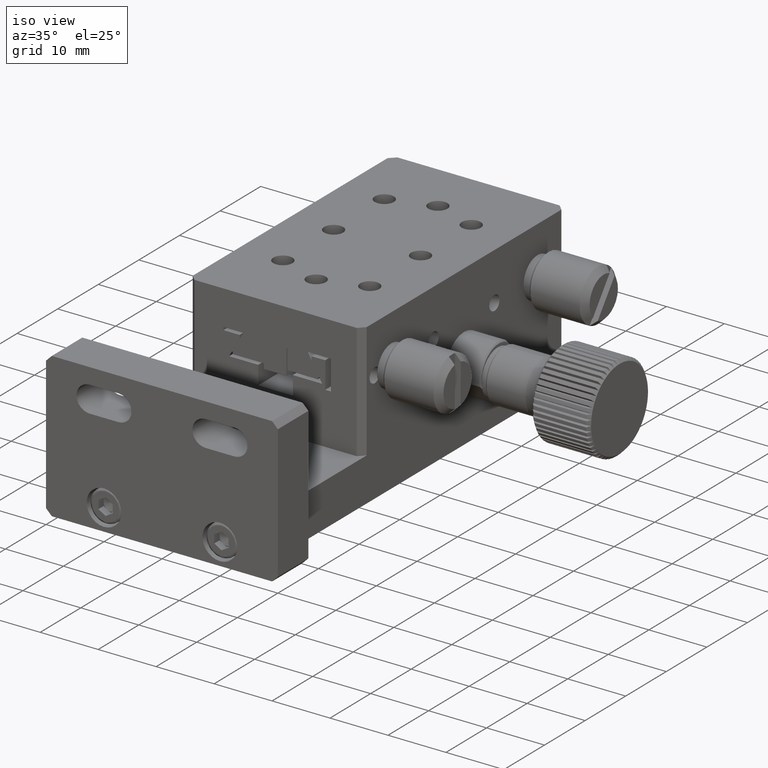
[diagram: clean part render]
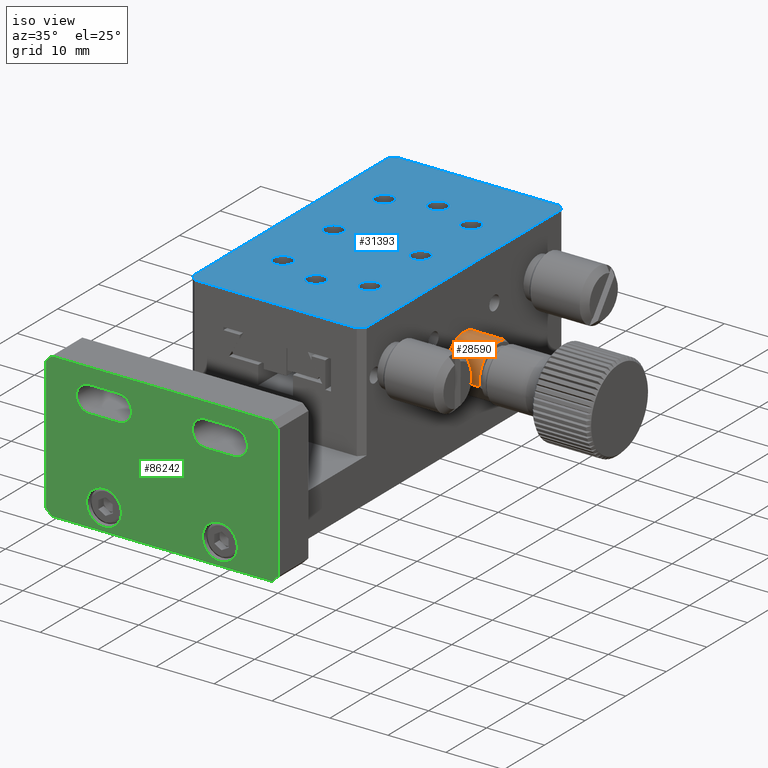
[diagram: same view with three faces highlighted in distinct colors, each labeled with its STEP entity id]
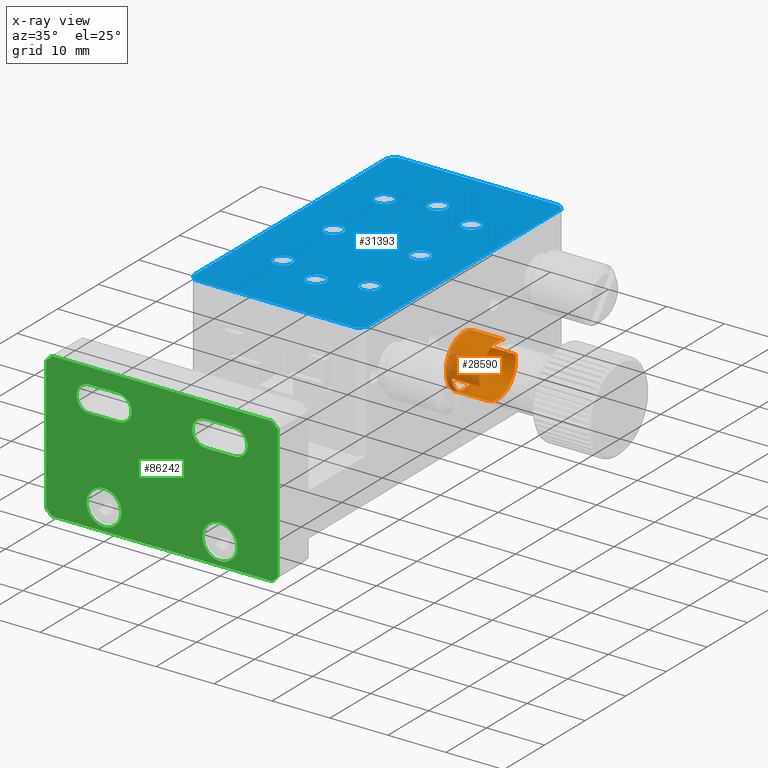
[diagram: x-ray of the same camera — body ghosted, the three highlighted faces saturated]
A machine part, iso view with three faces highlighted in distinct colors.
The next image is the same camera in x-ray (body ghosted, the three faces saturated) — at least one of them is partly hidden behind the body in this view.
Their STEP definitions:

[orange] entity #28590 — the highlighted cylindrical surface (bore or boss wall) has radius 4.5 mm, axis along (-1, 0, -0).
#4613 = DIRECTION ( 'NONE',  ( 1.000000000000000000, 2.810027915311846506E-14, 2.199258731218863696E-14 ) ) ;
#5357 = LINE ( 'NONE', #57992, #7927 ) ;
#7141 = EDGE_CURVE ( 'NONE', #19555, #33676, #62734, .T. ) ;
#7765 = CARTESIAN_POINT ( 'NONE',  ( 20.80000000000809024, 57.42055225823021658, -6.058146252483743943 ) ) ;
#7927 = VECTOR ( 'NONE', #59185, 1000.000000000000000 ) ;
#9046 = DIRECTION ( 'NONE',  ( 1.000000000000000000, -6.581911557350778885E-15, 6.630657487406821572E-14 ) ) ;
#9420 = VERTEX_POINT ( 'NONE', #67949 ) ;
#9538 = CIRCLE ( 'NONE', #83963, 4.499999999986812327 ) ;
#10146 = VERTEX_POINT ( 'NONE', #48368 ) ;
#10462 = VERTEX_POINT ( 'NONE', #117289 ) ;
#12035 = DIRECTION ( 'NONE',  ( -1.000000000000000000, 6.581911557350778885E-15, -6.630657487406821572E-14 ) ) ;
#12792 = EDGE_CURVE ( 'NONE', #10146, #10146, #83491, .T. ) ;
#14067 = CYLINDRICAL_SURFACE ( 'NONE', #46722, 4.500000000000000000 ) ;
#19012 = CARTESIAN_POINT ( 'NONE',  ( 20.80000000000811511, 53.00000000000095923, -6.899999999998638778 ) ) ;
#19555 = VERTEX_POINT ( 'NONE', #7765 ) ;
#21439 = ORIENTED_EDGE ( 'NONE', *, *, #37264, .F. ) ;
#21483 = CARTESIAN_POINT ( 'NONE',  ( 20.80000000001652438, 48.57944774176906577, -7.741853747510210049 ) ) ;
#21854 = DIRECTION ( 'NONE',  ( -6.630498619289128778E-14, 0.000000000000000000, 1.000000000000000000 ) ) ;
#21957 = CARTESIAN_POINT ( 'NONE',  ( 16.00000000000093792, 54.87937191828155647, -2.811239650849282512 ) ) ;
#23095 = EDGE_CURVE ( 'NONE', #35516, #33676, #93053, .T. ) ;
#23157 = LINE ( 'NONE', #21957, #72827 ) ;
#24634 = CARTESIAN_POINT ( 'NONE',  ( 20.80000000000811511, 53.00000000000095923, -6.899999999998638778 ) ) ;
#28590 = ADVANCED_FACE ( 'NONE', ( #113898, #57724 ), #14067, .T. ) ;
#30568 = EDGE_CURVE ( 'NONE', #113677, #10462, #102139, .T. ) ;
#31002 = DIRECTION ( 'NONE',  ( -6.630498619289128778E-14, 0.000000000000000000, 1.000000000000000000 ) ) ;
#32358 = CARTESIAN_POINT ( 'NONE',  ( 16.00000000000147438, 51.12062808172038331, -10.98876034914862743 ) ) ;
#33676 = VERTEX_POINT ( 'NONE', #35072 ) ;
#35072 = CARTESIAN_POINT ( 'NONE',  ( 16.00000000000125056, 57.42055225823902731, -6.058146252495292039 ) ) ;
#35516 = VERTEX_POINT ( 'NONE', #97136 ) ;
#37264 = EDGE_CURVE ( 'NONE', #9420, #88239, #57555, .T. ) ;
#37988 = ORIENTED_EDGE ( 'NONE', *, *, #7141, .F. ) ;
#38041 = EDGE_CURVE ( 'NONE', #88239, #45403, #5357, .T. ) ;
#38225 = CIRCLE ( 'NONE', #84068, 4.500000000000000000 ) ;
#39361 = CARTESIAN_POINT ( 'NONE',  ( 16.00000000000132871, 53.00000000000098765, -6.899999999998957634 ) ) ;
#39886 = CARTESIAN_POINT ( 'NONE',  ( 16.00000000000141753, 48.57944774176277036, -7.741853747502436711 ) ) ;
#44406 = ORIENTED_EDGE ( 'NONE', *, *, #55883, .T. ) ;
#45133 = CARTESIAN_POINT ( 'NONE',  ( 16.00000000000133582, 53.00000000000098765, -6.899999999998957634 ) ) ;
#45151 = EDGE_CURVE ( 'NONE', #10462, #19555, #9538, .T. ) ;
#45403 = VERTEX_POINT ( 'NONE', #39886 ) ;
#46496 = DIRECTION ( 'NONE',  ( 5.628213944296801737E-14, 0.6163267620811460068, -0.7874905220652312909 ) ) ;
#46722 = AXIS2_PLACEMENT_3D ( 'NONE', #64506, #95993, #21854 ) ;
#48368 = CARTESIAN_POINT ( 'NONE',  ( 15.00000000000103562, 53.00000000000099476, -2.399999999999024247 ) ) ;
#50119 = DIRECTION ( 'NONE',  ( 1.000000000000000000, -6.581911557350778885E-15, 6.630657487406821572E-14 ) ) ;
#51057 = AXIS2_PLACEMENT_3D ( 'NONE', #94375, #50119, #31002 ) ;
#52486 = DIRECTION ( 'NONE',  ( 1.000000000000000000, 2.810027915311846506E-14, 2.199258731218863696E-14 ) ) ;
#55883 = EDGE_CURVE ( 'NONE', #113677, #45403, #38225, .T. ) ;
#56183 = VECTOR ( 'NONE', #52486, 1000.000000000000000 ) ;
#57555 = CIRCLE ( 'NONE', #70925, 4.499999999986814103 ) ;
#57724 = FACE_OUTER_BOUND ( 'NONE', #95899, .T. ) ;
#57992 = CARTESIAN_POINT ( 'NONE',  ( 16.00000000000122213, 48.57944774176265668, -7.741853747502299044 ) ) ;
#59185 = DIRECTION ( 'NONE',  ( -1.000000000000000000, -2.810027915311846506E-14, -2.199258731218863696E-14 ) ) ;
#60010 = EDGE_CURVE ( 'NONE', #35516, #9420, #23157, .T. ) ;
#60964 = CARTESIAN_POINT ( 'NONE',  ( 16.00000000000093792, 57.42055225823894204, -6.058146252495181905 ) ) ;
#62734 = LINE ( 'NONE', #60964, #64227 ) ;
#63783 = ORIENTED_EDGE ( 'NONE', *, *, #30568, .F. ) ;
#64227 = VECTOR ( 'NONE', #97458, 1000.000000000000000 ) ;
#64506 = CARTESIAN_POINT ( 'NONE',  ( 21.00000000000133227, 53.00000000000095923, -6.899999999998626343 ) ) ;
#66112 = EDGE_LOOP ( 'NONE', ( #113785, #21439, #102343, #103935, #37988, #115014, #63783, #44406 ) ) ;
#67949 = CARTESIAN_POINT ( 'NONE',  ( 20.80000000001826166, 54.87937191829048800, -2.811239650860419381 ) ) ;
#70925 = AXIS2_PLACEMENT_3D ( 'NONE', #24634, #9046, #72458 ) ;
#72458 = DIRECTION ( 'NONE',  ( 5.628213944296799213E-14, 0.6163267620811457848, -0.7874905220652312909 ) ) ;
#72827 = VECTOR ( 'NONE', #4613, 1000.000000000000000 ) ;
#75838 = DIRECTION ( 'NONE',  ( -1.000000000000000000, 6.581911557350778885E-15, -6.630657487406821572E-14 ) ) ;
#81609 = DIRECTION ( 'NONE',  ( -6.630498619289128778E-14, 0.000000000000000000, 1.000000000000000000 ) ) ;
#83491 = CIRCLE ( 'NONE', #51057, 4.500000000000000000 ) ;
#83963 = AXIS2_PLACEMENT_3D ( 'NONE', #19012, #108709, #46496 ) ;
#84068 = AXIS2_PLACEMENT_3D ( 'NONE', #39361, #75838, #111672 ) ;
#88239 = VERTEX_POINT ( 'NONE', #21483 ) ;
#93053 = CIRCLE ( 'NONE', #108334, 4.500000000000000000 ) ;
#94375 = CARTESIAN_POINT ( 'NONE',  ( 15.00000000000133404, 53.00000000000099476, -6.899999999999024247 ) ) ;
#95899 = EDGE_LOOP ( 'NONE', ( #104237 ) ) ;
#95993 = DIRECTION ( 'NONE',  ( -1.000000000000000000, 6.581911557350778885E-15, -6.630657487406821572E-14 ) ) ;
#96736 = CARTESIAN_POINT ( 'NONE',  ( 16.00000000000122213, 51.12062808172038331, -10.98876034914862743 ) ) ;
#97136 = CARTESIAN_POINT ( 'NONE',  ( 16.00000000000117240, 54.87937191828155647, -2.811239650849282512 ) ) ;
#97458 = DIRECTION ( 'NONE',  ( -1.000000000000000000, -2.810027915311846506E-14, -2.199258731218863696E-14 ) ) ;
#102139 = LINE ( 'NONE', #96736, #56183 ) ;
#102343 = ORIENTED_EDGE ( 'NONE', *, *, #60010, .F. ) ;
#103935 = ORIENTED_EDGE ( 'NONE', *, *, #23095, .T. ) ;
#104237 = ORIENTED_EDGE ( 'NONE', *, *, #12792, .T. ) ;
#108334 = AXIS2_PLACEMENT_3D ( 'NONE', #45133, #12035, #81609 ) ;
#108709 = DIRECTION ( 'NONE',  ( 1.000000000000000000, -6.581911557350778885E-15, 6.630657487406821572E-14 ) ) ;
#111672 = DIRECTION ( 'NONE',  ( -6.630498619289128778E-14, 0.000000000000000000, 1.000000000000000000 ) ) ;
#113677 = VERTEX_POINT ( 'NONE', #32358 ) ;
#113785 = ORIENTED_EDGE ( 'NONE', *, *, #38041, .F. ) ;
#113898 = FACE_OUTER_BOUND ( 'NONE', #66112, .T. ) ;
#115014 = ORIENTED_EDGE ( 'NONE', *, *, #45151, .F. ) ;
#117289 = CARTESIAN_POINT ( 'NONE',  ( 20.80000000000169891, 51.12062808172051120, -10.98876034914852085 ) ) ;

[blue] entity #31393 — the highlighted planar face has unit normal (-0, -0, 1).
#544 = ORIENTED_EDGE ( 'NONE', *, *, #22262, .T. ) ;
#595 = EDGE_CURVE ( 'NONE', #25746, #25746, #10522, .T. ) ;
#1920 = LINE ( 'NONE', #91650, #47358 ) ;
#4480 = VERTEX_POINT ( 'NONE', #115847 ) ;
#5221 = CIRCLE ( 'NONE', #12904, 1.649999999999991696 ) ;
#5225 = CARTESIAN_POINT ( 'NONE',  ( -14.99999999999934630, 77.00000000000125056, 7.499999999999312550 ) ) ;
#5404 = DIRECTION ( 'NONE',  ( 1.000000000000000000, 0.000000000000000000, 6.938893903907292749E-14 ) ) ;
#5482 = CARTESIAN_POINT ( 'NONE',  ( -13.99999999999975309, 28.00000000000123279, 7.499999999999771738 ) ) ;
#5984 = CARTESIAN_POINT ( 'NONE',  ( -14.99999999999953459, 29.00000000000103029, 7.499999999999254818 ) ) ;
#7191 = DIRECTION ( 'NONE',  ( 1.000000000000000000, 0.000000000000000000, 6.938893903907234689E-14 ) ) ;
#7308 = EDGE_LOOP ( 'NONE', ( #27938 ) ) ;
#7710 = DIRECTION ( 'NONE',  ( -1.181590230087572649E-28, 1.000000000000000000, 1.706450796586064217E-15 ) ) ;
#8218 = FACE_BOUND ( 'NONE', #114209, .T. ) ;
#8797 = DIRECTION ( 'NONE',  ( 1.000000000000000000, 0.000000000000000000, 6.924256078472752334E-14 ) ) ;
#9237 = LINE ( 'NONE', #71465, #51332 ) ;
#10522 = CIRCLE ( 'NONE', #94523, 1.649999999999984812 ) ;
#10981 = EDGE_LOOP ( 'NONE', ( #64732 ) ) ;
#12904 = AXIS2_PLACEMENT_3D ( 'NONE', #94834, #49989, #67340 ) ;
#13535 = EDGE_LOOP ( 'NONE', ( #103001 ) ) ;
#14086 = CARTESIAN_POINT ( 'NONE',  ( 7.500000000000561329, 65.50000000000105160, 7.500000000000853539 ) ) ;
#14844 = CARTESIAN_POINT ( 'NONE',  ( 9.150000000000456879, 53.00000000000105871, 7.500000000000939693 ) ) ;
#14878 = LINE ( 'NONE', #69318, #97375 ) ;
#16190 = LINE ( 'NONE', #52667, #41602 ) ;
#17616 = DIRECTION ( 'NONE',  ( 0.7071067811865530128, 0.7071067811865421326, -0.000000000000000000 ) ) ;
#17765 = PLANE ( 'NONE',  #94736 ) ;
#18253 = VERTEX_POINT ( 'NONE', #83162 ) ;
#19419 = VERTEX_POINT ( 'NONE', #5984 ) ;
#20618 = CARTESIAN_POINT ( 'NONE',  ( 14.00000000000054001, 28.00000000000116884, 7.500000000001255884 ) ) ;
#21146 = EDGE_CURVE ( 'NONE', #47132, #46548, #9237, .T. ) ;
#22262 = EDGE_CURVE ( 'NONE', #83669, #83669, #5221, .T. ) ;
#22771 = CARTESIAN_POINT ( 'NONE',  ( 3.608224830031758756E-13, 38.00000000000111555, 7.500000000000284217 ) ) ;
#23201 = ORIENTED_EDGE ( 'NONE', *, *, #595, .T. ) ;
#23954 = CARTESIAN_POINT ( 'NONE',  ( 14.00000000000085798, 78.00000000000089528, 7.500000000001310951 ) ) ;
#25575 = FACE_BOUND ( 'NONE', #110947, .T. ) ;
#25746 = VERTEX_POINT ( 'NONE', #80754 ) ;
#26709 = AXIS2_PLACEMENT_3D ( 'NONE', #83969, #94110, #92934 ) ;
#26752 = FACE_BOUND ( 'NONE', #7308, .T. ) ;
#27757 = EDGE_CURVE ( 'NONE', #87216, #87216, #40847, .T. ) ;
#27897 = FACE_BOUND ( 'NONE', #39582, .T. ) ;
#27938 = ORIENTED_EDGE ( 'NONE', *, *, #32928, .T. ) ;
#28834 = DIRECTION ( 'NONE',  ( 1.000000000000000000, 0.000000000000000000, 6.938893903907292749E-14 ) ) ;
#30021 = EDGE_CURVE ( 'NONE', #113501, #113501, #96321, .T. ) ;
#30278 = VERTEX_POINT ( 'NONE', #48807 ) ;
#30426 = VECTOR ( 'NONE', #69406, 1000.000000000000000 ) ;
#31393 = ADVANCED_FACE ( 'NONE', ( #72796, #100832, #25575, #45255, #36306, #80585, #8218, #27897, #26752 ), #17765, .T. ) ;
#31948 = EDGE_CURVE ( 'NONE', #68095, #68095, #64189, .T. ) ;
#32928 = EDGE_CURVE ( 'NONE', #77657, #77657, #89273, .T. ) ;
#34981 = EDGE_LOOP ( 'NONE', ( #53014 ) ) ;
#35895 = AXIS2_PLACEMENT_3D ( 'NONE', #83837, #103518, #28834 ) ;
#36306 = FACE_BOUND ( 'NONE', #10981, .T. ) ;
#37689 = ORIENTED_EDGE ( 'NONE', *, *, #111730, .T. ) ;
#38226 = CARTESIAN_POINT ( 'NONE',  ( 9.150000000000359179, 40.50000000000107292, 7.500000000000926370 ) ) ;
#39132 = EDGE_CURVE ( 'NONE', #79462, #4480, #59642, .T. ) ;
#39582 = EDGE_LOOP ( 'NONE', ( #544 ) ) ;
#40320 = VECTOR ( 'NONE', #48301, 1000.000000000000114 ) ;
#40586 = CARTESIAN_POINT ( 'NONE',  ( -5.849999999999439204, 65.50000000000117950, 7.499999999999940492 ) ) ;
#40698 = DIRECTION ( 'NONE',  ( 6.924256078472752334E-14, 1.706450796582752776E-15, -1.000000000000000000 ) ) ;
#40847 = CIRCLE ( 'NONE', #73371, 1.649999999999998579 ) ;
#41602 = VECTOR ( 'NONE', #109829, 1000.000000000000000 ) ;
#42737 = CARTESIAN_POINT ( 'NONE',  ( -14.99999999999924682, 77.00000000000135003, 7.499999999999289457 ) ) ;
#43140 = EDGE_CURVE ( 'NONE', #79462, #19419, #59824, .T. ) ;
#44234 = EDGE_CURVE ( 'NONE', #46548, #18253, #14878, .T. ) ;
#44691 = CARTESIAN_POINT ( 'NONE',  ( 15.00000000000066791, 78.00000000000100897, 7.500000000001380229 ) ) ;
#45255 = FACE_BOUND ( 'NONE', #103305, .T. ) ;
#46548 = VERTEX_POINT ( 'NONE', #92399 ) ;
#46773 = DIRECTION ( 'NONE',  ( 1.000000000000000000, 0.000000000000000000, 6.924256078472752334E-14 ) ) ;
#47132 = VERTEX_POINT ( 'NONE', #20618 ) ;
#47358 = VECTOR ( 'NONE', #46773, 1000.000000000000000 ) ;
#47774 = CIRCLE ( 'NONE', #26709, 1.649999999999991696 ) ;
#48301 = DIRECTION ( 'NONE',  ( 0.7071067811865501263, 0.7071067811865450192, -0.000000000000000000 ) ) ;
#48807 = CARTESIAN_POINT ( 'NONE',  ( 1.650000000000567679, 68.00000000000110845, 7.500000000000454747 ) ) ;
#49989 = DIRECTION ( 'NONE',  ( 6.924256078472752334E-14, 1.706450796582752776E-15, -1.000000000000000000 ) ) ;
#50295 = CARTESIAN_POINT ( 'NONE',  ( 15.00000000000085443, 77.00000000000081002, 7.500000000001310951 ) ) ;
#51332 = VECTOR ( 'NONE', #17616, 1000.000000000000000 ) ;
#51533 = CARTESIAN_POINT ( 'NONE',  ( -7.499999999999633182, 40.50000000000117950, 7.499999999999785061 ) ) ;
#52667 = CARTESIAN_POINT ( 'NONE',  ( -13.99999999999592859, 27.99999999999741362, 7.499999999999285016 ) ) ;
#53014 = ORIENTED_EDGE ( 'NONE', *, *, #86357, .T. ) ;
#53472 = DIRECTION ( 'NONE',  ( 6.924256078472752334E-14, 1.706450796582752776E-15, -1.000000000000000000 ) ) ;
#54666 = ORIENTED_EDGE ( 'NONE', *, *, #31948, .T. ) ;
#58966 = VERTEX_POINT ( 'NONE', #95450 ) ;
#59368 = VERTEX_POINT ( 'NONE', #5482 ) ;
#59642 = LINE ( 'NONE', #5225, #40320 ) ;
#59824 = LINE ( 'NONE', #69990, #30426 ) ;
#60482 = DIRECTION ( 'NONE',  ( 1.000000000000000000, 0.000000000000000000, 6.938893903907263719E-14 ) ) ;
#61249 = CARTESIAN_POINT ( 'NONE',  ( 7.500000000000464517, 53.00000000000105871, 7.500000000000825118 ) ) ;
#61697 = ORIENTED_EDGE ( 'NONE', *, *, #81165, .T. ) ;
#62982 = DIRECTION ( 'NONE',  ( -1.000000000000000000, -0.000000000000000000, -6.924256078472752334E-14 ) ) ;
#62997 = ORIENTED_EDGE ( 'NONE', *, *, #44234, .T. ) ;
#64189 = CIRCLE ( 'NONE', #100441, 1.649999999999984812 ) ;
#64732 = ORIENTED_EDGE ( 'NONE', *, *, #27757, .T. ) ;
#65741 = AXIS2_PLACEMENT_3D ( 'NONE', #61249, #53472, #89955 ) ;
#67340 = DIRECTION ( 'NONE',  ( 1.000000000000000000, 0.000000000000000000, 6.938893903907263719E-14 ) ) ;
#67663 = DIRECTION ( 'NONE',  ( 0.7071067811865469066, -0.7071067811865482389, -0.000000000000000000 ) ) ;
#68095 = VERTEX_POINT ( 'NONE', #78837 ) ;
#68240 = AXIS2_PLACEMENT_3D ( 'NONE', #51533, #114876, #60482 ) ;
#69318 = CARTESIAN_POINT ( 'NONE',  ( 15.00000000000029132, 78.00000000000100897, 7.500000000001380229 ) ) ;
#69406 = DIRECTION ( 'NONE',  ( 1.181590230087572649E-28, -1.000000000000000000, -1.706450796586064217E-15 ) ) ;
#69990 = CARTESIAN_POINT ( 'NONE',  ( -14.99999999999934630, 78.00000000000100897, 7.499999999999303668 ) ) ;
#70640 = VECTOR ( 'NONE', #67663, 999.9999999999998863 ) ;
#71465 = CARTESIAN_POINT ( 'NONE',  ( 14.00000000000457767, 28.00000000000531131, 7.500000000001283418 ) ) ;
#72796 = FACE_OUTER_BOUND ( 'NONE', #76606, .T. ) ;
#73371 = AXIS2_PLACEMENT_3D ( 'NONE', #80144, #79545, #7191 ) ;
#76606 = EDGE_LOOP ( 'NONE', ( #91808, #98395, #61697, #82788, #62997, #105826, #107832, #116309 ) ) ;
#77657 = VERTEX_POINT ( 'NONE', #115260 ) ;
#78311 = VERTEX_POINT ( 'NONE', #23954 ) ;
#78837 = CARTESIAN_POINT ( 'NONE',  ( 9.150000000000545697, 65.50000000000105160, 7.500000000000968114 ) ) ;
#79462 = VERTEX_POINT ( 'NONE', #42737 ) ;
#79545 = DIRECTION ( 'NONE',  ( 6.924256078472752334E-14, 1.706450796582752776E-15, -1.000000000000000000 ) ) ;
#80144 = CARTESIAN_POINT ( 'NONE',  ( -7.499999999999437783, 65.50000000000117950, 7.499999999999825917 ) ) ;
#80585 = FACE_BOUND ( 'NONE', #13535, .T. ) ;
#80754 = CARTESIAN_POINT ( 'NONE',  ( 1.650000000000345635, 38.00000000000111555, 7.500000000000398792 ) ) ;
#81165 = EDGE_CURVE ( 'NONE', #59368, #47132, #1920, .T. ) ;
#81507 = LINE ( 'NONE', #100022, #84107 ) ;
#82788 = ORIENTED_EDGE ( 'NONE', *, *, #21146, .T. ) ;
#83162 = CARTESIAN_POINT ( 'NONE',  ( 15.00000000000056133, 77.00000000000109424, 7.500000000001345590 ) ) ;
#83669 = VERTEX_POINT ( 'NONE', #38226 ) ;
#83837 = CARTESIAN_POINT ( 'NONE',  ( 5.828670879282070827E-13, 68.00000000000110845, 7.500000000000340172 ) ) ;
#83969 = CARTESIAN_POINT ( 'NONE',  ( -7.499999999999534595, 53.00000000000118661, 7.499999999999798383 ) ) ;
#84107 = VECTOR ( 'NONE', #62982, 1000.000000000000000 ) ;
#85254 = EDGE_CURVE ( 'NONE', #19419, #59368, #16190, .T. ) ;
#86357 = EDGE_CURVE ( 'NONE', #30278, #30278, #89340, .T. ) ;
#87043 = DIRECTION ( 'NONE',  ( 6.924256078472752334E-14, 1.706450796582752776E-15, -1.000000000000000000 ) ) ;
#87216 = VERTEX_POINT ( 'NONE', #40586 ) ;
#89273 = CIRCLE ( 'NONE', #68240, 1.649999999999991696 ) ;
#89340 = CIRCLE ( 'NONE', #35895, 1.649999999999984812 ) ;
#89955 = DIRECTION ( 'NONE',  ( 1.000000000000000000, 0.000000000000000000, 6.938893903907263719E-14 ) ) ;
#91650 = CARTESIAN_POINT ( 'NONE',  ( 15.00000000000066791, 28.00000000000122569, 7.500000000001295852 ) ) ;
#91808 = ORIENTED_EDGE ( 'NONE', *, *, #43140, .T. ) ;
#92399 = CARTESIAN_POINT ( 'NONE',  ( 15.00000000000029310, 29.00000000000101252, 7.500000000001325162 ) ) ;
#92934 = DIRECTION ( 'NONE',  ( 1.000000000000000000, 0.000000000000000000, 6.938893903907263719E-14 ) ) ;
#94110 = DIRECTION ( 'NONE',  ( 6.924256078472752334E-14, 1.706450796582752776E-15, -1.000000000000000000 ) ) ;
#94523 = AXIS2_PLACEMENT_3D ( 'NONE', #22771, #40698, #5404 ) ;
#94736 = AXIS2_PLACEMENT_3D ( 'NONE', #44691, #99673, #8797 ) ;
#94834 = CARTESIAN_POINT ( 'NONE',  ( 7.500000000000367706, 40.50000000000107292, 7.500000000000811795 ) ) ;
#95450 = CARTESIAN_POINT ( 'NONE',  ( -5.849999999999543121, 53.00000000000118661, 7.499999999999912959 ) ) ;
#95696 = EDGE_CURVE ( 'NONE', #78311, #18253, #95756, .T. ) ;
#95756 = LINE ( 'NONE', #50295, #70640 ) ;
#96321 = CIRCLE ( 'NONE', #65741, 1.649999999999991696 ) ;
#97375 = VECTOR ( 'NONE', #7710, 1000.000000000000000 ) ;
#98395 = ORIENTED_EDGE ( 'NONE', *, *, #85254, .T. ) ;
#99673 = DIRECTION ( 'NONE',  ( -6.924256078472752334E-14, -1.706450796586064217E-15, 1.000000000000000000 ) ) ;
#100022 = CARTESIAN_POINT ( 'NONE',  ( 15.00000000000066791, 78.00000000000100897, 7.500000000001380229 ) ) ;
#100441 = AXIS2_PLACEMENT_3D ( 'NONE', #14086, #87043, #105543 ) ;
#100832 = FACE_BOUND ( 'NONE', #34981, .T. ) ;
#101432 = EDGE_CURVE ( 'NONE', #78311, #4480, #81507, .T. ) ;
#103001 = ORIENTED_EDGE ( 'NONE', *, *, #30021, .T. ) ;
#103305 = EDGE_LOOP ( 'NONE', ( #54666 ) ) ;
#103518 = DIRECTION ( 'NONE',  ( 6.924256078472752334E-14, 1.706450796582752776E-15, -1.000000000000000000 ) ) ;
#105543 = DIRECTION ( 'NONE',  ( 1.000000000000000000, 0.000000000000000000, 6.938893903907292749E-14 ) ) ;
#105826 = ORIENTED_EDGE ( 'NONE', *, *, #95696, .F. ) ;
#107832 = ORIENTED_EDGE ( 'NONE', *, *, #101432, .T. ) ;
#109829 = DIRECTION ( 'NONE',  ( 0.7071067811865416886, -0.7071067811865534569, -0.000000000000000000 ) ) ;
#110947 = EDGE_LOOP ( 'NONE', ( #23201 ) ) ;
#111730 = EDGE_CURVE ( 'NONE', #58966, #58966, #47774, .T. ) ;
#113501 = VERTEX_POINT ( 'NONE', #14844 ) ;
#114209 = EDGE_LOOP ( 'NONE', ( #37689 ) ) ;
#114876 = DIRECTION ( 'NONE',  ( 6.924256078472752334E-14, 1.706450796582752776E-15, -1.000000000000000000 ) ) ;
#115260 = CARTESIAN_POINT ( 'NONE',  ( -5.849999999999640821, 40.50000000000117950, 7.499999999999899636 ) ) ;
#115847 = CARTESIAN_POINT ( 'NONE',  ( -13.99999999999943157, 78.00000000000117950, 7.499999999999826805 ) ) ;
#116309 = ORIENTED_EDGE ( 'NONE', *, *, #39132, .F. ) ;

[green] entity #86242 — the highlighted planar face has unit normal (-0, 1, 0).
#151 = DIRECTION ( 'NONE',  ( 0.000000000000000000, -2.528974147905113794E-16, 1.000000000000000000 ) ) ;
#191 = VERTEX_POINT ( 'NONE', #20390 ) ;
#735 = FACE_BOUND ( 'NONE', #66517, .T. ) ;
#1128 = CARTESIAN_POINT ( 'NONE',  ( -7.500000000000001776, 1.788767395229413127E-15, -2.250000000000001332 ) ) ;
#1311 = FACE_OUTER_BOUND ( 'NONE', #81040, .T. ) ;
#1522 = CIRCLE ( 'NONE', #49351, 2.999999999999999112 ) ;
#1525 = CARTESIAN_POINT ( 'NONE',  ( -19.00000000000000000, 7.222237291452134449E-32, 4.999999999999992006 ) ) ;
#1733 = EDGE_CURVE ( 'NONE', #20713, #61427, #58318, .T. ) ;
#4334 = CARTESIAN_POINT ( 'NONE',  ( -12.50000000000000000, -1.284086891306705978E-15, -2.250000000000000444 ) ) ;
#4657 = ORIENTED_EDGE ( 'NONE', *, *, #22273, .F. ) ;
#5173 = DIRECTION ( 'NONE',  ( 0.000000000000000000, -2.439496423901527117E-16, 1.000000000000000000 ) ) ;
#10566 = VERTEX_POINT ( 'NONE', #94258 ) ;
#11252 = VERTEX_POINT ( 'NONE', #39512 ) ;
#11600 = ORIENTED_EDGE ( 'NONE', *, *, #39081, .F. ) ;
#11794 = LINE ( 'NONE', #20758, #30171 ) ;
#13392 = DIRECTION ( 'NONE',  ( 0.000000000000000000, 0.000000000000000000, -1.000000000000000000 ) ) ;
#16157 = ORIENTED_EDGE ( 'NONE', *, *, #18861, .F. ) ;
#17870 = DIRECTION ( 'NONE',  ( -1.000000000000000000, -0.000000000000000000, -0.000000000000000000 ) ) ;
#18861 = EDGE_CURVE ( 'NONE', #68214, #11252, #86715, .T. ) ;
#19415 = LINE ( 'NONE', #101311, #64585 ) ;
#20239 = VECTOR ( 'NONE', #100946, 1000.000000000000000 ) ;
#20390 = CARTESIAN_POINT ( 'NONE',  ( -7.500000000000000888, 6.708615165729186754E-16, 2.249999999999999556 ) ) ;
#20406 = AXIS2_PLACEMENT_3D ( 'NONE', #97735, #69644, #43921 ) ;
#20709 = AXIS2_PLACEMENT_3D ( 'NONE', #28231, #45583, #151 ) ;
#20713 = VERTEX_POINT ( 'NONE', #89996 ) ;
#20758 = CARTESIAN_POINT ( 'NONE',  ( -19.00000000000000355, -2.775557561562891351E-14, -20.00000000000000355 ) ) ;
#21625 = DIRECTION ( 'NONE',  ( 0.000000000000000000, -2.439496423901527117E-16, 1.000000000000000000 ) ) ;
#21762 = DIRECTION ( 'NONE',  ( -0.000000000000000000, -1.000000000000000000, -0.000000000000000000 ) ) ;
#22273 = EDGE_CURVE ( 'NONE', #11252, #99070, #66744, .T. ) ;
#23366 = LINE ( 'NONE', #32921, #26618 ) ;
#23861 = LINE ( 'NONE', #60319, #66784 ) ;
#23944 = DIRECTION ( 'NONE',  ( -0.7071067811865474617, 0.000000000000000000, -0.7071067811865474617 ) ) ;
#24290 = EDGE_CURVE ( 'NONE', #99070, #32513, #37026, .T. ) ;
#24422 = VERTEX_POINT ( 'NONE', #1128 ) ;
#25435 = CARTESIAN_POINT ( 'NONE',  ( 19.99999999999999645, 4.452080973620287975E-15, -19.00000000000000355 ) ) ;
#25952 = CARTESIAN_POINT ( 'NONE',  ( 7.500000000000000000, -1.284086891306705978E-15, -2.250000000000000444 ) ) ;
#26618 = VECTOR ( 'NONE', #23944, 1000.000000000000114 ) ;
#27179 = CARTESIAN_POINT ( 'NONE',  ( 7.500000000000000000, -2.401992769963200528E-15, 2.250000000000000000 ) ) ;
#27204 = CARTESIAN_POINT ( 'NONE',  ( -12.50000000000000000, -4.905827873220668882E-15, -3.809831523940104281E-17 ) ) ;
#27692 = ORIENTED_EDGE ( 'NONE', *, *, #110234, .F. ) ;
#27791 = DIRECTION ( 'NONE',  ( -0.000000000000000000, -1.000000000000000000, -2.528974147905114287E-16 ) ) ;
#28231 = CARTESIAN_POINT ( 'NONE',  ( 7.500000000000000000, -4.905827873220668882E-15, -3.809831523940104281E-17 ) ) ;
#28374 = DIRECTION ( 'NONE',  ( -0.7071067811865471286, 0.000000000000000000, -0.7071067811865479058 ) ) ;
#30135 = DIRECTION ( 'NONE',  ( 0.000000000000000000, -2.528974147905114287E-16, 1.000000000000000000 ) ) ;
#30171 = VECTOR ( 'NONE', #93716, 1000.000000000000114 ) ;
#31001 = ORIENTED_EDGE ( 'NONE', *, *, #104386, .T. ) ;
#32513 = VERTEX_POINT ( 'NONE', #25435 ) ;
#32921 = CARTESIAN_POINT ( 'NONE',  ( 20.00000000000000000, 5.854791417363665082E-15, -19.00000000000000000 ) ) ;
#32950 = CARTESIAN_POINT ( 'NONE',  ( -20.00000000000000000, -1.235310254287600132E-14, -19.00000000000001066 ) ) ;
#33845 = ORIENTED_EDGE ( 'NONE', *, *, #42131, .F. ) ;
#35253 = ORIENTED_EDGE ( 'NONE', *, *, #105970, .F. ) ;
#35693 = EDGE_CURVE ( 'NONE', #60881, #60881, #108235, .T. ) ;
#35865 = VERTEX_POINT ( 'NONE', #25952 ) ;
#36997 = ORIENTED_EDGE ( 'NONE', *, *, #78657, .F. ) ;
#37026 = LINE ( 'NONE', #99242, #96158 ) ;
#39081 = EDGE_CURVE ( 'NONE', #45785, #88230, #111071, .T. ) ;
#39512 = CARTESIAN_POINT ( 'NONE',  ( 19.00000000000000000, 1.444447458290426890E-31, 4.999999999999992006 ) ) ;
#42131 = EDGE_CURVE ( 'NONE', #24422, #191, #64839, .T. ) ;
#43372 = EDGE_CURVE ( 'NONE', #32513, #45785, #23366, .T. ) ;
#43786 = ORIENTED_EDGE ( 'NONE', *, *, #44675, .F. ) ;
#43824 = ORIENTED_EDGE ( 'NONE', *, *, #43372, .F. ) ;
#43921 = DIRECTION ( 'NONE',  ( 0.000000000000000000, 0.000000000000000000, -1.000000000000000000 ) ) ;
#44188 = VECTOR ( 'NONE', #17870, 1000.000000000000000 ) ;
#44675 = EDGE_CURVE ( 'NONE', #61427, #24422, #23861, .T. ) ;
#45583 = DIRECTION ( 'NONE',  ( -0.000000000000000000, -1.000000000000000000, -2.528974147905114287E-16 ) ) ;
#45726 = VECTOR ( 'NONE', #108655, 1000.000000000000000 ) ;
#45785 = VERTEX_POINT ( 'NONE', #47674 ) ;
#47674 = CARTESIAN_POINT ( 'NONE',  ( 18.99999999999999289, 4.452080973620287975E-15, -20.00000000000001066 ) ) ;
#49351 = AXIS2_PLACEMENT_3D ( 'NONE', #50445, #21762, #13392 ) ;
#49599 = VERTEX_POINT ( 'NONE', #68290 ) ;
#49650 = DIRECTION ( 'NONE',  ( 1.000000000000000000, 0.000000000000000000, 0.000000000000000000 ) ) ;
#50445 = CARTESIAN_POINT ( 'NONE',  ( -10.00000000000000000, 3.964181688839983341E-15, -16.25000000000000711 ) ) ;
#52357 = DIRECTION ( 'NONE',  ( -0.000000000000000000, -1.000000000000000000, -2.528974147905114287E-16 ) ) ;
#54369 = CARTESIAN_POINT ( 'NONE',  ( 12.50000000000000000, 1.808899883130219685E-15, -2.250000000000001332 ) ) ;
#54384 = DIRECTION ( 'NONE',  ( -0.000000000000000000, 2.439496423901527117E-16, -1.000000000000000000 ) ) ;
#54841 = VERTEX_POINT ( 'NONE', #27179 ) ;
#55537 = VERTEX_POINT ( 'NONE', #54369 ) ;
#56110 = ORIENTED_EDGE ( 'NONE', *, *, #84569, .F. ) ;
#56325 = FACE_BOUND ( 'NONE', #95590, .T. ) ;
#56866 = CIRCLE ( 'NONE', #83581, 2.250000000000000888 ) ;
#56908 = FACE_BOUND ( 'NONE', #100823, .T. ) ;
#58318 = CIRCLE ( 'NONE', #65897, 2.250000000000000444 ) ;
#58520 = CARTESIAN_POINT ( 'NONE',  ( -20.00000000000000000, 1.219748211950767010E-16, 3.999999999999991562 ) ) ;
#60284 = CARTESIAN_POINT ( 'NONE',  ( 10.00000000000000000, 3.964181688839983341E-15, -19.25000000000000711 ) ) ;
#60319 = CARTESIAN_POINT ( 'NONE',  ( 20.00000000000000000, 1.768634907328605780E-15, -2.250000000000000444 ) ) ;
#60605 = VECTOR ( 'NONE', #103776, 1000.000000000000000 ) ;
#60881 = VERTEX_POINT ( 'NONE', #60284 ) ;
#61427 = VERTEX_POINT ( 'NONE', #4334 ) ;
#61539 = CARTESIAN_POINT ( 'NONE',  ( 20.00000000000000000, 6.708615165729184782E-16, 2.249999999999999112 ) ) ;
#62577 = VECTOR ( 'NONE', #118282, 1000.000000000000000 ) ;
#64585 = VECTOR ( 'NONE', #28374, 1000.000000000000000 ) ;
#64839 = CIRCLE ( 'NONE', #70587, 2.250000000000000444 ) ;
#65897 = AXIS2_PLACEMENT_3D ( 'NONE', #27204, #52357, #118042 ) ;
#66475 = EDGE_CURVE ( 'NONE', #35865, #55537, #109897, .T. ) ;
#66517 = EDGE_LOOP ( 'NONE', ( #105306, #36997, #33845, #43786 ) ) ;
#66744 = LINE ( 'NONE', #103188, #60605 ) ;
#66784 = VECTOR ( 'NONE', #80062, 1000.000000000000000 ) ;
#68214 = VERTEX_POINT ( 'NONE', #1525 ) ;
#68290 = CARTESIAN_POINT ( 'NONE',  ( 12.50000000000000000, 6.708615165729181823E-16, 2.249999999999999556 ) ) ;
#69644 = DIRECTION ( 'NONE',  ( -0.000000000000000000, -1.000000000000000000, -0.000000000000000000 ) ) ;
#70587 = AXIS2_PLACEMENT_3D ( 'NONE', #95413, #87036, #78069 ) ;
#71636 = LINE ( 'NONE', #73382, #45726 ) ;
#72092 = ORIENTED_EDGE ( 'NONE', *, *, #24290, .F. ) ;
#73382 = CARTESIAN_POINT ( 'NONE',  ( 20.00000000000000000, 6.708615165729183795E-16, 2.249999999999999556 ) ) ;
#73544 = EDGE_LOOP ( 'NONE', ( #35253, #27692, #56110, #105962 ) ) ;
#74115 = ORIENTED_EDGE ( 'NONE', *, *, #80471, .F. ) ;
#74287 = FACE_BOUND ( 'NONE', #73544, .T. ) ;
#75216 = CARTESIAN_POINT ( 'NONE',  ( 20.00000000000000000, 6.098741059753818582E-15, -20.00000000000001066 ) ) ;
#75316 = CARTESIAN_POINT ( 'NONE',  ( -20.00000000000000000, 1.925929944387235853E-31, 4.999999999999992006 ) ) ;
#78069 = DIRECTION ( 'NONE',  ( 0.000000000000000000, -2.528974147905114287E-16, 1.000000000000000000 ) ) ;
#78657 = EDGE_CURVE ( 'NONE', #191, #20713, #116522, .T. ) ;
#79770 = AXIS2_PLACEMENT_3D ( 'NONE', #94570, #93397, #21625 ) ;
#80062 = DIRECTION ( 'NONE',  ( 1.000000000000000000, 0.000000000000000000, 0.000000000000000000 ) ) ;
#80471 = EDGE_CURVE ( 'NONE', #10566, #10566, #1522, .T. ) ;
#81040 = EDGE_LOOP ( 'NONE', ( #92149, #11600, #43824, #72092, #4657, #16157, #31001, #91172 ) ) ;
#82789 = CARTESIAN_POINT ( 'NONE',  ( 12.50000000000000000, 1.239880699851568737E-15, -9.565834145999142349E-16 ) ) ;
#83105 = LINE ( 'NONE', #75316, #89489 ) ;
#83215 = EDGE_CURVE ( 'NONE', #106742, #107809, #83105, .T. ) ;
#83581 = AXIS2_PLACEMENT_3D ( 'NONE', #82789, #27791, #30135 ) ;
#84569 = EDGE_CURVE ( 'NONE', #55537, #49599, #56866, .T. ) ;
#86242 = ADVANCED_FACE ( 'NONE', ( #1311, #735, #74287, #56908, #56325 ), #93986, .F. ) ;
#86715 = LINE ( 'NONE', #114175, #91275 ) ;
#87036 = DIRECTION ( 'NONE',  ( -0.000000000000000000, -1.000000000000000000, -2.528974147905114287E-16 ) ) ;
#87570 = CIRCLE ( 'NONE', #20709, 2.250000000000000888 ) ;
#88230 = VERTEX_POINT ( 'NONE', #113524 ) ;
#89489 = VECTOR ( 'NONE', #5173, 1000.000000000000000 ) ;
#89996 = CARTESIAN_POINT ( 'NONE',  ( -12.50000000000000000, -2.401992769963200528E-15, 2.250000000000000000 ) ) ;
#91172 = ORIENTED_EDGE ( 'NONE', *, *, #83215, .F. ) ;
#91275 = VECTOR ( 'NONE', #49650, 1000.000000000000000 ) ;
#92149 = ORIENTED_EDGE ( 'NONE', *, *, #103362, .T. ) ;
#93397 = DIRECTION ( 'NONE',  ( -0.000000000000000000, 1.000000000000000000, 2.439496423901527117E-16 ) ) ;
#93716 = DIRECTION ( 'NONE',  ( 0.7071067811865474617, 0.000000000000000000, -0.7071067811865474617 ) ) ;
#93986 = PLANE ( 'NONE',  #79770 ) ;
#94258 = CARTESIAN_POINT ( 'NONE',  ( -10.00000000000000000, 3.964181688839983341E-15, -19.25000000000000711 ) ) ;
#94570 = CARTESIAN_POINT ( 'NONE',  ( 20.00000000000000000, 1.925929944387235853E-31, 4.999999999999992006 ) ) ;
#95413 = CARTESIAN_POINT ( 'NONE',  ( -7.500000000000001776, 1.239880699851569526E-15, -9.565834145999146293E-16 ) ) ;
#95590 = EDGE_LOOP ( 'NONE', ( #117958 ) ) ;
#96158 = VECTOR ( 'NONE', #54384, 1000.000000000000000 ) ;
#97735 = CARTESIAN_POINT ( 'NONE',  ( 10.00000000000000000, 3.964181688839983341E-15, -16.25000000000000711 ) ) ;
#99002 = CARTESIAN_POINT ( 'NONE',  ( 20.00000000000000000, 1.219748211950767749E-16, 3.999999999999991562 ) ) ;
#99070 = VERTEX_POINT ( 'NONE', #99002 ) ;
#99242 = CARTESIAN_POINT ( 'NONE',  ( 20.00000000000000000, 1.925929944387235853E-31, 4.999999999999992006 ) ) ;
#100823 = EDGE_LOOP ( 'NONE', ( #74115 ) ) ;
#100946 = DIRECTION ( 'NONE',  ( 1.000000000000000000, 0.000000000000000000, 0.000000000000000000 ) ) ;
#101311 = CARTESIAN_POINT ( 'NONE',  ( -19.00000000000000000, 0.000000000000000000, 4.999999999999992895 ) ) ;
#103188 = CARTESIAN_POINT ( 'NONE',  ( 20.00000000000000000, 1.925929944387235853E-31, 3.999999999999990674 ) ) ;
#103362 = EDGE_CURVE ( 'NONE', #106742, #88230, #11794, .T. ) ;
#103776 = DIRECTION ( 'NONE',  ( 0.7071067811865471286, 0.000000000000000000, -0.7071067811865479058 ) ) ;
#104386 = EDGE_CURVE ( 'NONE', #68214, #107809, #19415, .T. ) ;
#105306 = ORIENTED_EDGE ( 'NONE', *, *, #1733, .F. ) ;
#105962 = ORIENTED_EDGE ( 'NONE', *, *, #66475, .F. ) ;
#105970 = EDGE_CURVE ( 'NONE', #54841, #35865, #87570, .T. ) ;
#106742 = VERTEX_POINT ( 'NONE', #32950 ) ;
#107809 = VERTEX_POINT ( 'NONE', #58520 ) ;
#108235 = CIRCLE ( 'NONE', #20406, 2.999999999999999112 ) ;
#108655 = DIRECTION ( 'NONE',  ( -1.000000000000000000, -0.000000000000000000, -0.000000000000000000 ) ) ;
#109897 = LINE ( 'NONE', #110484, #20239 ) ;
#110234 = EDGE_CURVE ( 'NONE', #49599, #54841, #71636, .T. ) ;
#110484 = CARTESIAN_POINT ( 'NONE',  ( 20.00000000000000000, 1.768634907328605780E-15, -2.250000000000000444 ) ) ;
#111071 = LINE ( 'NONE', #75216, #44188 ) ;
#113524 = CARTESIAN_POINT ( 'NONE',  ( -19.00000000000000355, -1.235310254287600132E-14, -20.00000000000000711 ) ) ;
#114175 = CARTESIAN_POINT ( 'NONE',  ( 20.00000000000000000, 1.925929944387235853E-31, 4.999999999999992006 ) ) ;
#116522 = LINE ( 'NONE', #61539, #62577 ) ;
#117958 = ORIENTED_EDGE ( 'NONE', *, *, #35693, .F. ) ;
#118042 = DIRECTION ( 'NONE',  ( 0.000000000000000000, -2.528974147905114287E-16, 1.000000000000000000 ) ) ;
#118282 = DIRECTION ( 'NONE',  ( -1.000000000000000000, -0.000000000000000000, -0.000000000000000000 ) ) ;